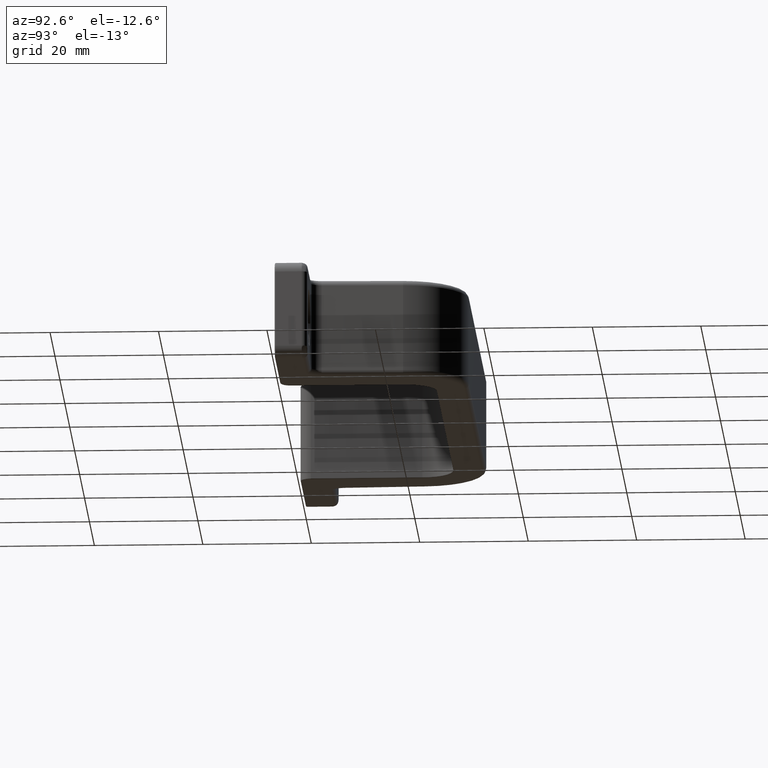
[diagram: clean part render]
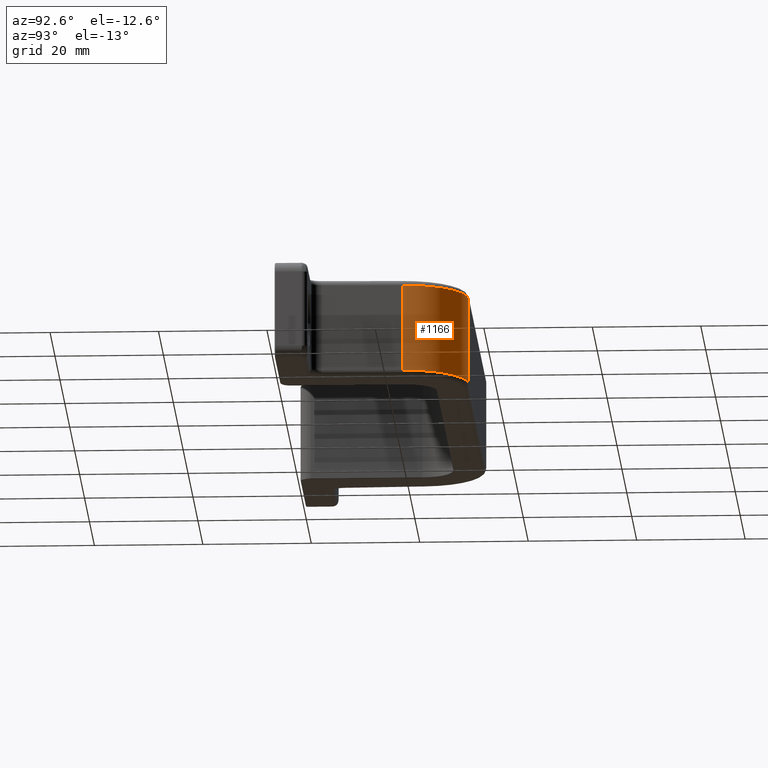
[diagram: same view with one face highlighted and labeled with its STEP entity id]
A machine part, auxiliary view. The second image highlights one B-rep face of the part: STEP entity #1166.
In plain terms, the highlighted cylindrical surface (partial cylindrical patch) has radius 12 mm, axis along (0, 0, -1).
Its self-contained STEP definition (entity closure, byte-faithful):
#69=LINE('',#1993,#141);
#70=LINE('',#1995,#142);
#141=VECTOR('',#1579,16.);
#142=VECTOR('',#1582,16.);
#201=CYLINDRICAL_SURFACE('',#1295,12.);
#256=FACE_OUTER_BOUND('',#338,.T.);
#338=EDGE_LOOP('',(#893,#894,#895,#896));
#417=CIRCLE('',#1261,12.);
#438=CIRCLE('',#1290,12.);
#518=VERTEX_POINT('',#1904);
#520=VERTEX_POINT('',#1907);
#538=VERTEX_POINT('',#1977);
#540=VERTEX_POINT('',#1983);
#635=EDGE_CURVE('',#520,#518,#417,.T.);
#666=EDGE_CURVE('',#538,#540,#438,.T.);
#670=EDGE_CURVE('',#538,#518,#69,.T.);
#671=EDGE_CURVE('',#540,#520,#70,.T.);
#893=ORIENTED_EDGE('',*,*,#666,.T.);
#894=ORIENTED_EDGE('',*,*,#671,.T.);
#895=ORIENTED_EDGE('',*,*,#635,.T.);
#896=ORIENTED_EDGE('',*,*,#670,.F.);
#1166=ADVANCED_FACE('',(#256),#201,.T.);
#1261=AXIS2_PLACEMENT_3D('',#1908,#1499,#1500);
#1290=AXIS2_PLACEMENT_3D('',#1986,#1567,#1568);
#1295=AXIS2_PLACEMENT_3D('',#1994,#1580,#1581);
#1499=DIRECTION('center_axis',(0.,0.,-1.));
#1500=DIRECTION('ref_axis',(0.694658370458997,0.719339800338652,0.));
#1567=DIRECTION('center_axis',(0.,0.,1.));
#1568=DIRECTION('ref_axis',(0.694658370458997,0.719339800338652,0.));
#1579=DIRECTION('',(0.,0.,1.));
#1580=DIRECTION('center_axis',(0.,0.,-1.));
#1581=DIRECTION('ref_axis',(0.,1.,0.));
#1582=DIRECTION('',(0.,0.,1.));
#1904=CARTESIAN_POINT('',(111.909182696029,22.91879396043,8.));
#1907=CARTESIAN_POINT('',(99.9164927718003,34.5,8.));
#1908=CARTESIAN_POINT('Origin',(99.9164927718003,22.5,8.));
#1977=CARTESIAN_POINT('',(111.909182696029,22.91879396043,-8.));
#1983=CARTESIAN_POINT('',(99.9164927718003,34.5,-8.));
#1986=CARTESIAN_POINT('Origin',(99.9164927718003,22.5,-8.));
#1993=CARTESIAN_POINT('',(111.909182696029,22.91879396043,0.));
#1994=CARTESIAN_POINT('Origin',(99.9164927718003,22.5,0.));
#1995=CARTESIAN_POINT('',(99.9164927718003,34.5,0.));